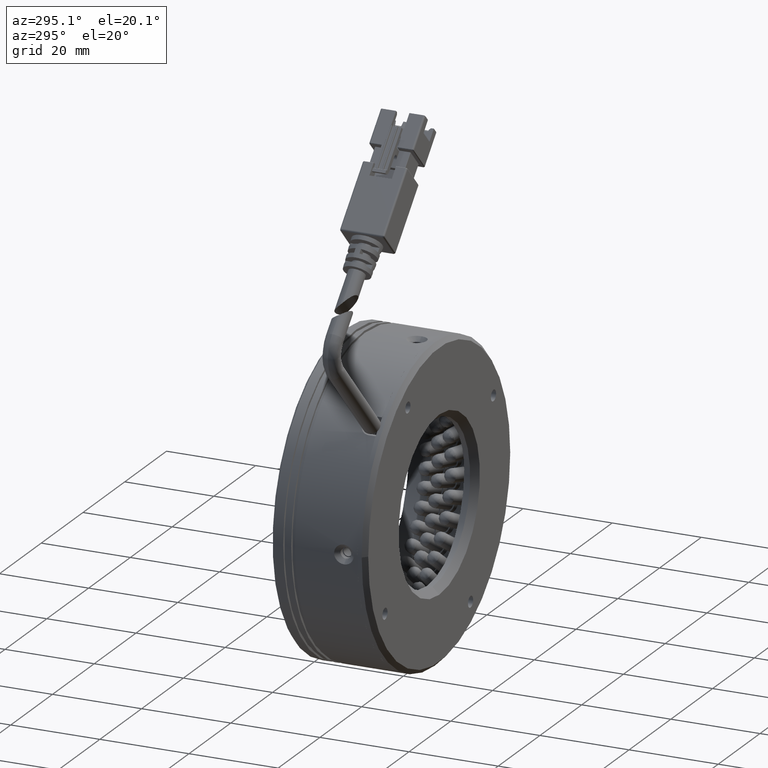
[diagram: clean part render]
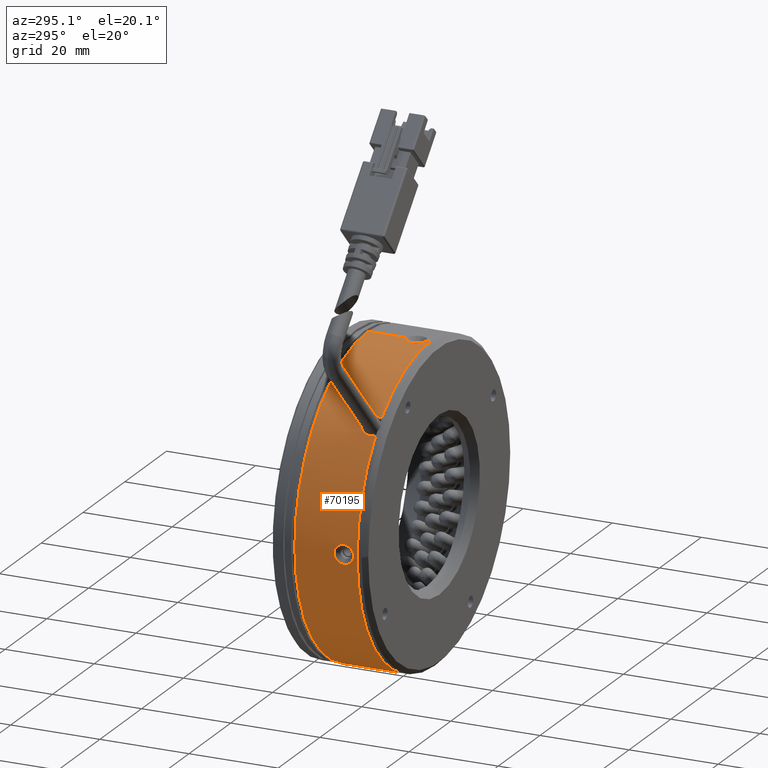
[diagram: same view with one face highlighted and labeled with its STEP entity id]
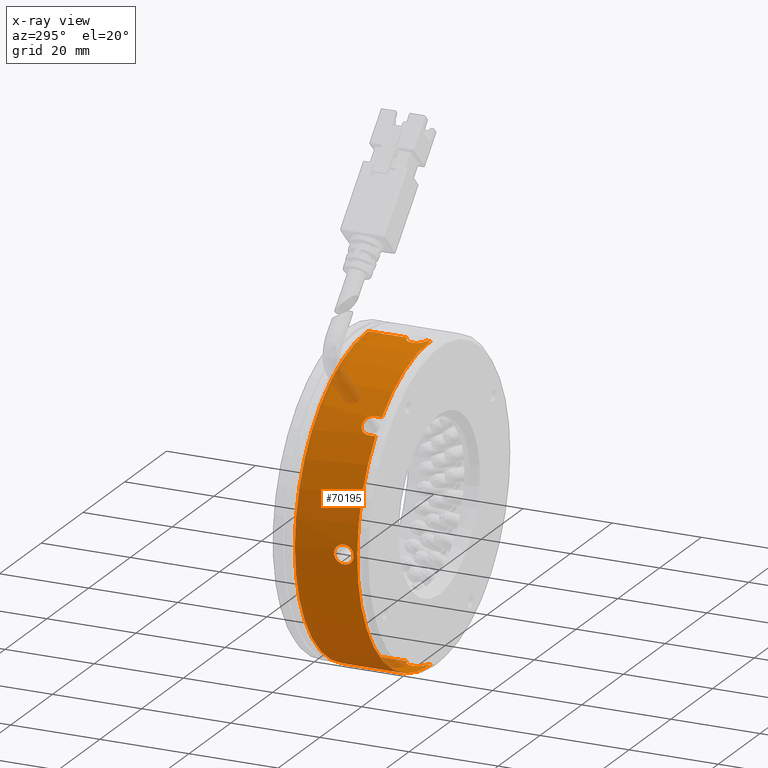
[diagram: x-ray of the same camera — body ghosted, the highlighted face saturated]
A machine part, auxiliary view. The second image highlights one B-rep face of the part: STEP entity #70195.
The next image is the same camera in x-ray: the body ghosted, the highlighted face saturated — about 4% of this face is hidden behind the body in this view.
In plain terms, the highlighted cylindrical surface (partial cylindrical patch) has radius 35 mm, axis along (-0, -1, -0).
Its self-contained STEP definition (entity closure, byte-faithful):
#85 = CARTESIAN_POINT ( 'NONE',  ( -72.19919487424323300, -23.48470876480094900, -11.77680698778632400 ) ) ;
#99 = DIRECTION ( 'NONE',  ( 0.0000000000000000000, 0.0000000000000000000, -1.000000000000000000 ) ) ;
#207 = CARTESIAN_POINT ( 'NONE',  ( -72.18648179265486000, -23.17893845901557300, -11.48444872106112900 ) ) ;
#299 = CARTESIAN_POINT ( 'NONE',  ( -72.18221120800826900, -23.06593643704891200, -11.39573436642867700 ) ) ;
#413 = CARTESIAN_POINT ( 'NONE',  ( -72.17441359463734300, -22.82666853178469800, -11.24287750523224400 ) ) ;
#546 = CARTESIAN_POINT ( 'NONE',  ( -72.17089713113424000, -22.70108090721028700, -11.17873472184791200 ) ) ;
#642 = CARTESIAN_POINT ( 'NONE',  ( -72.16499678584074200, -22.43829656751779600, -11.07438415200388200 ) ) ;
#1005 = CARTESIAN_POINT ( 'NONE',  ( -72.16260842407425000, -22.29991913465412900, -11.03413457653737800 ) ) ;
#1118 = CARTESIAN_POINT ( 'NONE',  ( -72.15942396432168900, -22.02123343144859300, -10.98102504383183500 ) ) ;
#1556 = DIRECTION ( 'NONE',  ( -0.0000000000000000000, -1.000000000000000000, -0.0000000000000000000 ) ) ;
#1854 = CARTESIAN_POINT ( 'NONE',  ( -39.35859563401581300, -21.73693679055961100, 21.83240658874149900 ) ) ;
#1864 = VERTEX_POINT ( 'NONE', #54137 ) ;
#2040 = CARTESIAN_POINT ( 'NONE',  ( -72.15859563407821000, -21.88003493872553000, -10.96759341127066500 ) ) ;
#2211 = CARTESIAN_POINT ( 'NONE',  ( -39.35859563401583500, -21.87997071529385100, 21.83240658874150200 ) ) ;
#2402 = DIRECTION ( 'NONE',  ( -0.0000000000000000000, -1.000000000000000000, -0.0000000000000000000 ) ) ;
#2553 = CARTESIAN_POINT ( 'NONE',  ( -39.34517581350775800, -22.02118854001020100, 21.83323421800685100 ) ) ;
#2865 = CARTESIAN_POINT ( 'NONE',  ( -72.21701431307143100, -19.65340967446399400, -13.80181309716154400 ) ) ;
#2888 = CARTESIAN_POINT ( 'NONE',  ( -39.29202359342004100, -22.30006405213177700, 21.83642122275134100 ) ) ;
#3127 = CARTESIAN_POINT ( 'NONE',  ( -63.46670918281706300, -10.10550973775694800, 10.05589494330666500 ) ) ;
#3241 = CARTESIAN_POINT ( 'NONE',  ( -39.25181313723115300, -22.43825653596173800, 21.83880721211647800 ) ) ;
#3324 = CARTESIAN_POINT ( 'NONE',  ( -72.15859563407819600, -21.73693679055961100, -10.96759341127059500 ) ) ;
#3528 = CARTESIAN_POINT ( 'NONE',  ( -38.54970370794844600, -19.98943390663248800, 21.87299322417172600 ) ) ;
#3580 = CARTESIAN_POINT ( 'NONE',  ( -39.09538724856667400, -22.83223909229244700, 21.84765226428723800 ) ) ;
#3696 = ORIENTED_EDGE ( 'NONE', *, *, #18945, .T. ) ;
#3931 = CARTESIAN_POINT ( 'NONE',  ( -38.93929322558239600, -23.07691833832288700, 21.85605086407608500 ) ) ;
#4265 = CARTESIAN_POINT ( 'NONE',  ( -38.64674033459720400, -23.38288011401085200, 21.86877216067218300 ) ) ;
#4278 = VERTEX_POINT ( 'NONE', #79405 ) ;
#4327 = CARTESIAN_POINT ( 'NONE',  ( -39.29208258320427700, -22.29980184118386800, -48.04126867576255900 ) ) ;
#4332 = CARTESIAN_POINT ( 'NONE',  ( -63.45719955681787600, -22.90314248807499800, 10.06668387137813000 ) ) ;
#4633 = CARTESIAN_POINT ( 'NONE',  ( -38.53830400992985300, -23.47619273373700100, 21.87307450420270200 ) ) ;
#4651 = CARTESIAN_POINT ( 'NONE',  ( -72.18228372277616200, -20.40594409998430000, -11.39722068191005100 ) ) ;
#4696 = CARTESIAN_POINT ( 'NONE',  ( -62.36686726495298700, -21.10478920740880300, 11.24595865287460100 ) ) ;
#4966 = CARTESIAN_POINT ( 'NONE',  ( -38.30506477950060400, -23.63920736627007500, 21.88106210217100800 ) ) ;
#5035 = CARTESIAN_POINT ( 'NONE',  ( -60.60145859948127600, -22.10135303487812700, 12.94540987546400500 ) ) ;
#5297 = CARTESIAN_POINT ( 'NONE',  ( -38.18185526177880000, -23.70812651774490500, 21.88469953635841100 ) ) ;
#5636 = CARTESIAN_POINT ( 'NONE',  ( -37.92225923372046700, -23.82081558900806300, 21.89084473604073000 ) ) ;
#5974 = CARTESIAN_POINT ( 'NONE',  ( -37.78478417546926200, -23.86454505281397300, 21.89335213302042900 ) ) ;
#6335 = CARTESIAN_POINT ( 'NONE',  ( -37.50771075228000500, -23.92223655273517100, 21.89669692132190800 ) ) ;
#7039 = VERTEX_POINT ( 'NONE', #93261 ) ;
#7065 = CARTESIAN_POINT ( 'NONE',  ( -39.34517581350775100, -21.45268504110900300, -48.03808518791749500 ) ) ;
#7403 = CARTESIAN_POINT ( 'NONE',  ( -37.22376356038465400, -23.93693679049394900, 21.89757451504468500 ) ) ;
#7529 = CARTESIAN_POINT ( 'NONE',  ( -37.36691250539988800, -23.93693679049393100, 21.89757451504468100 ) ) ;
#8585 = DIRECTION ( 'NONE',  ( 0.0000000000000000000, 1.000000000000000000, 0.0000000000000000000 ) ) ;
#8640 = CIRCLE ( 'NONE', #79074, 35.00000000000000000 ) ;
#9134 = CARTESIAN_POINT ( 'NONE',  ( -37.22376356038466100, -24.73693679055960400, -13.10242548495532100 ) ) ;
#10804 = B_SPLINE_CURVE_WITH_KNOTS ( 'NONE', 3,
 ( #54919, #103054, #14809, #71024, #22934, #79152, #31025, #87253, #39112, #95316, #47165, #103405, #55260, #7065, #63299, #15161 ),
 .UNSPECIFIED., .F., .F.,
 ( 4, 2, 2, 2, 2, 2, 2, 4 ),
 ( 0.006786052840743859800, 0.007210104708582166200, 0.007634156576420471700, 0.008058208444258778100, 0.008482260312097084400, 0.009330364047773681600, 0.009754415915611981000, 0.01017846778345028000 ),
 .UNSPECIFIED. ) ;
#10957 = CARTESIAN_POINT ( 'NONE',  ( -72.22288607844613800, -19.55163243285318600, -13.38667850832691600 ) ) ;
#11623 = CARTESIAN_POINT ( 'NONE',  ( -37.92368686113864100, -19.65360307949746500, 21.89081440042952000 ) ) ;
#11837 = ORIENTED_EDGE ( 'NONE', *, *, #20697, .T. ) ;
#12076 = FACE_OUTER_BOUND ( 'NONE', #20494, .T. ) ;
#12369 = LINE ( 'NONE', #22091, #26196 ) ;
#12463 = CARTESIAN_POINT ( 'NONE',  ( -39.14754193227398100, -22.70089100849475400, -48.04955420123086200 ) ) ;
#12465 = CARTESIAN_POINT ( 'NONE',  ( -63.46670918281704800, -23.18693679055961000, 10.05589494330667200 ) ) ;
#12739 = CARTESIAN_POINT ( 'NONE',  ( -72.17089672165334900, -20.77281160615650500, -11.17872752636620800 ) ) ;
#12788 = CARTESIAN_POINT ( 'NONE',  ( -62.07319593178989700, -21.03700290820240700, 11.54561089932319900 ) ) ;
#13113 = CARTESIAN_POINT ( 'NONE',  ( -60.46704248962336000, -22.48873220437680900, 13.06536134960385800 ) ) ;
#14499 = ORIENTED_EDGE ( 'NONE', *, *, #48249, .F. ) ;
#14597 = EDGE_CURVE ( 'NONE', #7039, #51332, #86611, .T. ) ;
#14809 = CARTESIAN_POINT ( 'NONE',  ( -37.50771075228001200, -19.55163702838384100, -48.10154789123254900 ) ) ;
#15161 = CARTESIAN_POINT ( 'NONE',  ( -39.35859563401581300, -21.73693679055961100, -48.03725755865213600 ) ) ;
#16408 = B_SPLINE_CURVE_WITH_KNOTS ( 'NONE', 3,
 ( #98921, #50704, #18756, #74934, #26803, #83060, #34907, #91167, #42980, #99264, #51061, #2865, #59161, #10957, #67183, #20546, #76725, #28621, #84844, #36709, #92947, #44758, #101040, #52822, #4651, #60927, #12739, #68973, #20897, #77068 ),
 .UNSPECIFIED., .F., .F.,
 ( 4, 2, 2, 2, 2, 2, 2, 2, 2, 2, 2, 2, 2, 2, 4 ),
 ( 0.0000000000000000000, 0.0004250800221460684400, 0.0008501600442921368900, 0.001275240066438205400, 0.001700320088584273800, 0.002550480132876414200, 0.002975560155022483100, 0.003400640177168551000, 0.003825720199314619800, 0.004250800221460688200, 0.004675880243606756600, 0.005100960265752824100, 0.005526040287898893400, 0.005951120310044961800, 0.006801280354337099400 ),
 .UNSPECIFIED. ) ;
#17216 = VECTOR ( 'NONE', #70319, 1000.000000000000000 ) ;
#17277 = DIRECTION ( 'NONE',  ( 0.0000000000000000000, 0.0000000000000000000, -1.000000000000000000 ) ) ;
#18012 = ORIENTED_EDGE ( 'NONE', *, *, #77751, .T. ) ;
#18544 = CIRCLE ( 'NONE', #68099, 35.00000000000000000 ) ;
#18629 = CARTESIAN_POINT ( 'NONE',  ( -37.22376356038465400, -10.10550973775694800, 21.89757451504468500 ) ) ;
#18756 = CARTESIAN_POINT ( 'NONE',  ( -72.15942396432167500, -21.45264014967063200, -15.22382592607904600 ) ) ;
#18945 = EDGE_CURVE ( 'NONE', #1864, #50734, #68074, .T. ) ;
#19789 = CARTESIAN_POINT ( 'NONE',  ( -37.50826264832228700, -19.55164704036117100, 21.89669610280887100 ) ) ;
#19850 = VERTEX_POINT ( 'NONE', #35397 ) ;
#20494 = EDGE_LOOP ( 'NONE', ( #14499, #57828, #98609, #44428, #38941, #37117, #76059, #66356, #85349, #50011, #11837, #61731, #3696, #40907 ) ) ;
#20546 = CARTESIAN_POINT ( 'NONE',  ( -72.22377267242411800, -19.53678271417762600, -12.96310817783427000 ) ) ;
#20581 = CARTESIAN_POINT ( 'NONE',  ( -38.93063235117442400, -23.06569060759352400, -48.06086438807119500 ) ) ;
#20584 = CARTESIAN_POINT ( 'NONE',  ( -63.41989359537929300, -22.62648436212026200, 10.10885547354302400 ) ) ;
#20697 = EDGE_CURVE ( 'NONE', #73414, #19850, #48975, .T. ) ;
#20897 = CARTESIAN_POINT ( 'NONE',  ( -72.15859563407819600, -21.45071874979721100, -10.96759341127045700 ) ) ;
#20949 = CARTESIAN_POINT ( 'NONE',  ( -61.77115033680624400, -21.05066216474871500, 11.84642374056994600 ) ) ;
#21294 = CARTESIAN_POINT ( 'NONE',  ( -60.39311792706755000, -22.90058625625215100, 13.13079438471443400 ) ) ;
#22091 = CARTESIAN_POINT ( 'NONE',  ( -37.22376356038465400, -10.10550973775694800, 21.89757451504468500 ) ) ;
#22511 = CARTESIAN_POINT ( 'NONE',  ( -39.35859563401581300, -21.73693679055961100, -48.03725755865213600 ) ) ;
#22617 = VERTEX_POINT ( 'NONE', #73537 ) ;
#22934 = CARTESIAN_POINT ( 'NONE',  ( -37.92225923372048200, -19.65305799211099100, -48.09569570595137800 ) ) ;
#24600 = EDGE_LOOP ( 'NONE', ( #60248, #18012 ) ) ;
#26196 = VECTOR ( 'NONE', #45937, 1000.000000000000000 ) ;
#26803 = CARTESIAN_POINT ( 'NONE',  ( -72.16499678584072800, -21.03557701360143600, -15.13046681790700600 ) ) ;
#27140 = CARTESIAN_POINT ( 'NONE',  ( -39.35859563401579900, -21.59386895970070000, 21.83240658874150600 ) ) ;
#27468 = CARTESIAN_POINT ( 'NONE',  ( -39.34516963937911500, -21.45269998687595200, 21.83323456806186500 ) ) ;
#27823 = CARTESIAN_POINT ( 'NONE',  ( -37.22376356038465400, -19.53693679062221700, 21.89757451503732000 ) ) ;
#27947 = CARTESIAN_POINT ( 'NONE',  ( -39.35859563401581300, -21.73693679055961100, -48.03725755865213600 ) ) ;
#28128 = DIRECTION ( 'NONE',  ( 0.0000000000000000000, 1.000000000000000000, 0.0000000000000000000 ) ) ;
#28621 = CARTESIAN_POINT ( 'NONE',  ( -72.21955972410485500, -19.60900568356251800, -12.54258832069828800 ) ) ;
#28664 = CARTESIAN_POINT ( 'NONE',  ( -38.54970370794845300, -23.48443967448682600, -48.07784419408235300 ) ) ;
#28667 = CARTESIAN_POINT ( 'NONE',  ( -63.31787781798403400, -22.22783951909080700, 10.22353156421552400 ) ) ;
#29006 = CARTESIAN_POINT ( 'NONE',  ( -61.47508772277452500, -21.14476724911269300, 12.13426606671402100 ) ) ;
#29340 = CARTESIAN_POINT ( 'NONE',  ( -60.38208398864672700, -23.18693679055961000, 13.14052013747701200 ) ) ;
#29453 = EDGE_CURVE ( 'NONE', #48803, #34932, #38594, .T. ) ;
#31025 = CARTESIAN_POINT ( 'NONE',  ( -38.30506477950064000, -19.83466621484901200, -48.08591307208164500 ) ) ;
#34450 = AXIS2_PLACEMENT_3D ( 'NONE', #9134, #65336, #17277 ) ;
#34907 = CARTESIAN_POINT ( 'NONE',  ( -72.17441359463730100, -20.64720504933453800, -14.96197346467865000 ) ) ;
#34932 = VERTEX_POINT ( 'NONE', #35124 ) ;
#35124 = CARTESIAN_POINT ( 'NONE',  ( -37.22376356038466100, -24.73693679055960400, -48.10242548495532600 ) ) ;
#35223 = CARTESIAN_POINT ( 'NONE',  ( -39.35859563401581300, -21.73693679055961100, 21.83240658874149900 ) ) ;
#35397 = CARTESIAN_POINT ( 'NONE',  ( -37.22376356038465400, -24.73693679055960400, 21.89757451504468500 ) ) ;
#35578 = CARTESIAN_POINT ( 'NONE',  ( -39.25184992002358800, -21.03572116801038000, 21.83880509517631900 ) ) ;
#36709 = CARTESIAN_POINT ( 'NONE',  ( -72.21092947146236400, -19.76496629095659700, -12.14565423040928100 ) ) ;
#36752 = CARTESIAN_POINT ( 'NONE',  ( -37.92368686113866300, -23.82027050162193000, -48.09566537034015700 ) ) ;
#36756 = CARTESIAN_POINT ( 'NONE',  ( -63.16560618559595500, -21.86996423252865500, 10.39283354219874600 ) ) ;
#36940 = DIRECTION ( 'NONE',  ( -0.0000000000000000000, -1.000000000000000000, -0.0000000000000000000 ) ) ;
#37117 = ORIENTED_EDGE ( 'NONE', *, *, #29453, .T. ) ;
#37124 = CARTESIAN_POINT ( 'NONE',  ( -61.19195739857615700, -21.31782239801181700, 12.40325299526902800 ) ) ;
#37904 = EDGE_CURVE ( 'NONE', #98734, #102401, #49185, .T. ) ;
#38594 = LINE ( 'NONE', #46091, #17216 ) ;
#38941 = ORIENTED_EDGE ( 'NONE', *, *, #51509, .T. ) ;
#39112 = CARTESIAN_POINT ( 'NONE',  ( -38.64674033459721900, -20.09099346710828000, -48.07362313058281700 ) ) ;
#39307 = CARTESIAN_POINT ( 'NONE',  ( -37.22376356038465400, -19.53693679062221700, 21.89757451503732000 ) ) ;
#39911 = CARTESIAN_POINT ( 'NONE',  ( -37.22376356038466100, -10.10550973775694800, -13.10242548495532100 ) ) ;
#40450 = B_SPLINE_CURVE_WITH_KNOTS ( 'NONE', 3,
 ( #35223, #27140, #27468, #83742, #35578, #91818, #43612, #99914, #51701, #3528, #59821, #11623, #67844, #19789, #75947, #27823 ),
 .UNSPECIFIED., .F., .F.,
 ( 4, 2, 2, 2, 2, 2, 2, 4 ),
 ( 0.01017846778344897400, 0.01060262017258143200, 0.01102677256171389000, 0.01145092495084634700, 0.01187507733997880500, 0.01272338211824372900, 0.01314753450737617800, 0.01357168689650862900 ),
 .UNSPECIFIED. ) ;
#40907 = ORIENTED_EDGE ( 'NONE', *, *, #51880, .T. ) ;
#41821 = B_SPLINE_CURVE_WITH_KNOTS ( 'NONE', 3,
 ( #27947, #92635, #52523, #4327, #60625, #12463, #68653, #20581, #76774, #28664, #84887, #36752, #92994, #44801, #101072, #52871 ),
 .UNSPECIFIED., .F., .F.,
 ( 4, 2, 2, 2, 2, 2, 2, 4 ),
 ( 0.01017846778345028000, 0.01060262017258274900, 0.01102677256171521800, 0.01145092495084768700, 0.01187507733998015600, 0.01272338211824509300, 0.01314753450737757500, 0.01357168689651005500 ),
 .UNSPECIFIED. ) ;
#42541 = VERTEX_POINT ( 'NONE', #22511 ) ;
#42980 = CARTESIAN_POINT ( 'NONE',  ( -72.18648179265486000, -20.29493512210366600, -14.72040224884976200 ) ) ;
#43612 = CARTESIAN_POINT ( 'NONE',  ( -39.08342530106762800, -20.64741546415481100, 21.84821842645350300 ) ) ;
#44428 = ORIENTED_EDGE ( 'NONE', *, *, #90952, .T. ) ;
#44758 = CARTESIAN_POINT ( 'NONE',  ( -72.19933629333510800, -19.99615954029330600, -11.78989398007965800 ) ) ;
#44777 = CYLINDRICAL_SURFACE ( 'NONE', #83864, 35.00000000000000000 ) ;
#44801 = CARTESIAN_POINT ( 'NONE',  ( -37.50826264832232900, -23.92222654075826000, -48.10154707271952600 ) ) ;
#44805 = CARTESIAN_POINT ( 'NONE',  ( -62.89871526194900000, -21.46354957633663900, 10.68491687128340800 ) ) ;
#45136 = CARTESIAN_POINT ( 'NONE',  ( -60.93815582973164200, -21.56033681113305900, 12.63933173385570400 ) ) ;
#45922 = LINE ( 'NONE', #3127, #86187 ) ;
#45937 = DIRECTION ( 'NONE',  ( -0.0000000000000000000, -1.000000000000000000, -0.0000000000000000000 ) ) ;
#45986 = CARTESIAN_POINT ( 'NONE',  ( -37.22376356038466100, -10.10550973775694800, -48.10242548495532600 ) ) ;
#46091 = CARTESIAN_POINT ( 'NONE',  ( -37.22376356038466100, -10.10550973775694800, -48.10242548495532600 ) ) ;
#47165 = CARTESIAN_POINT ( 'NONE',  ( -39.09538724856667400, -20.64163448882672100, -48.05250323419785700 ) ) ;
#48249 = EDGE_CURVE ( 'NONE', #77940, #73714, #63407, .T. ) ;
#48482 = CARTESIAN_POINT ( 'NONE',  ( -63.46670918281706300, -24.73693679055960400, 10.05589494330665800 ) ) ;
#48803 = VERTEX_POINT ( 'NONE', #49087 ) ;
#48975 = CIRCLE ( 'NONE', #34450, 35.00000000000000000 ) ;
#49087 = CARTESIAN_POINT ( 'NONE',  ( -37.22376356038466100, -23.93693679049722800, -48.10242548494798600 ) ) ;
#49185 = B_SPLINE_CURVE_WITH_KNOTS ( 'NONE', 3,
 ( #12465, #60628, #4332, #20584, #76781, #28667, #84890, #36756, #92998, #44805, #101075, #52875, #4696, #60970, #12788, #69012, #20949, #77112, #29006, #85243, #37124, #93322, #45136, #101426, #53223, #5035, #61308, #13113, #69360, #21294, #77459, #29340 ),
 .UNSPECIFIED., .F., .F.,
 ( 4, 2, 2, 2, 2, 2, 2, 2, 2, 2, 2, 2, 2, 2, 2, 4 ),
 ( 3.469446951953614200E-018, 0.0004232750302415223700, 0.0008465500604830412700, 0.001269825090724560100, 0.001693100120966079100, 0.002539650181449116600, 0.002962925211690648900, 0.003386200241932181600, 0.003809475272173714200, 0.004232750302415246000, 0.004656025332656779100, 0.005079300362898311400, 0.005502575393139844500, 0.005925850423381375800, 0.006349125453622908900, 0.006772400483864441200 ),
 .UNSPECIFIED. ) ;
#49776 = CARTESIAN_POINT ( 'NONE',  ( -37.22376356038466100, -10.73693679055960500, -13.10242548495532100 ) ) ;
#49863 = LINE ( 'NONE', #93169, #71202 ) ;
#50011 = ORIENTED_EDGE ( 'NONE', *, *, #69065, .T. ) ;
#50476 = CARTESIAN_POINT ( 'NONE',  ( -72.15859563407818200, -21.73693679055961100, -15.23725755864029100 ) ) ;
#50704 = CARTESIAN_POINT ( 'NONE',  ( -72.15859563407821000, -21.59383864239477500, -15.23725755864028200 ) ) ;
#50734 = VERTEX_POINT ( 'NONE', #69131 ) ;
#51061 = CARTESIAN_POINT ( 'NONE',  ( -72.20782325663830600, -19.82196886819406200, -14.18986847612012000 ) ) ;
#51332 = VERTEX_POINT ( 'NONE', #50476 ) ;
#51509 = EDGE_CURVE ( 'NONE', #42541, #48803, #41821, .T. ) ;
#51701 = CARTESIAN_POINT ( 'NONE',  ( -38.84195110853834600, -20.29518929847126400, 21.86028288907399600 ) ) ;
#51880 = EDGE_CURVE ( 'NONE', #50734, #73714, #40450, .T. ) ;
#52523 = CARTESIAN_POINT ( 'NONE',  ( -39.34516963937911500, -22.02117359424328000, -48.03808553797249200 ) ) ;
#52822 = CARTESIAN_POINT ( 'NONE',  ( -72.18648156479511600, -20.29489224811288400, -11.48439829090766500 ) ) ;
#52871 = CARTESIAN_POINT ( 'NONE',  ( -37.22376356038466100, -23.93693679049722800, -48.10242548494798600 ) ) ;
#52875 = CARTESIAN_POINT ( 'NONE',  ( -62.46222385914966000, -21.14567528577140400, 11.14705329127196600 ) ) ;
#53223 = CARTESIAN_POINT ( 'NONE',  ( -60.71984682048545100, -21.86862348772203600, 12.83866978372840800 ) ) ;
#54067 = DIRECTION ( 'NONE',  ( -0.0000000000000000000, -1.000000000000000000, -0.0000000000000000000 ) ) ;
#54137 = CARTESIAN_POINT ( 'NONE',  ( -37.22376356038465400, -23.93693679049394900, 21.89757451504468500 ) ) ;
#54868 = FACE_BOUND ( 'NONE', #24600, .T. ) ;
#54919 = CARTESIAN_POINT ( 'NONE',  ( -37.22376356038466100, -19.53693679062502800, -48.10242548495532600 ) ) ;
#55260 = CARTESIAN_POINT ( 'NONE',  ( -39.29202359342004100, -21.17380952898742300, -48.04127219266198500 ) ) ;
#56179 = LINE ( 'NONE', #45986, #98974 ) ;
#56760 = CARTESIAN_POINT ( 'NONE',  ( -37.22376356038466100, -24.73693679055960400, -13.10242548495532100 ) ) ;
#57828 = ORIENTED_EDGE ( 'NONE', *, *, #59704, .T. ) ;
#57875 = DIRECTION ( 'NONE',  ( 0.0000000000000000000, 0.0000000000000000000, -1.000000000000000000 ) ) ;
#59161 = CARTESIAN_POINT ( 'NONE',  ( -72.21951787287260100, -19.60973319124941800, -13.66505939395210800 ) ) ;
#59508 = EDGE_CURVE ( 'NONE', #1864, #19850, #12369, .T. ) ;
#59704 = EDGE_CURVE ( 'NONE', #77940, #22617, #18544, .T. ) ;
#59821 = CARTESIAN_POINT ( 'NONE',  ( -38.31161495567853600, -19.82222505445712100, 21.88162088698194900 ) ) ;
#60248 = ORIENTED_EDGE ( 'NONE', *, *, #14597, .T. ) ;
#60625 = CARTESIAN_POINT ( 'NONE',  ( -39.25184992002360200, -22.43815241310885600, -48.04365606508695000 ) ) ;
#60628 = CARTESIAN_POINT ( 'NONE',  ( -63.46670668935083600, -23.04381623783286800, 10.05589776889578800 ) ) ;
#60927 = CARTESIAN_POINT ( 'NONE',  ( -72.17449339993611100, -20.64452868612601900, -11.24437837916172900 ) ) ;
#60970 = CARTESIAN_POINT ( 'NONE',  ( -62.17191088425483500, -21.05049272272526700, 11.44567870108063400 ) ) ;
#61308 = CARTESIAN_POINT ( 'NONE',  ( -60.54995429406810800, -22.22716761358990200, 12.99148010729247100 ) ) ;
#61731 = ORIENTED_EDGE ( 'NONE', *, *, #59508, .F. ) ;
#63299 = CARTESIAN_POINT ( 'NONE',  ( -39.35859563401586300, -21.59390286582536000, -48.03725755865214400 ) ) ;
#63407 = LINE ( 'NONE', #18629, #103676 ) ;
#64777 = DIRECTION ( 'NONE',  ( 0.0000000000000000000, 0.0000000000000000000, -1.000000000000000000 ) ) ;
#65336 = DIRECTION ( 'NONE',  ( 0.0000000000000000000, 1.000000000000000000, 0.0000000000000000000 ) ) ;
#65839 = EDGE_CURVE ( 'NONE', #82865, #98734, #45922, .T. ) ;
#66356 = ORIENTED_EDGE ( 'NONE', *, *, #65839, .T. ) ;
#67183 = CARTESIAN_POINT ( 'NONE',  ( -72.22375430103278400, -19.53709335787899800, -13.24628412896535000 ) ) ;
#67844 = CARTESIAN_POINT ( 'NONE',  ( -37.78718050045569800, -19.60993350181382800, 21.89331729895741700 ) ) ;
#68074 = B_SPLINE_CURVE_WITH_KNOTS ( 'NONE', 3,
 ( #7403, #7529, #6335, #5974, #5636, #5297, #4966, #4633, #4265, #3931, #3580, #3241, #2888, #2553, #2211, #1854 ),
 .UNSPECIFIED., .F., .F.,
 ( 4, 2, 2, 2, 2, 2, 2, 4 ),
 ( 0.006786052840742668900, 0.007210104708580961400, 0.007634156576419253900, 0.008058208444257546400, 0.008482260312095838900, 0.009330364047772411700, 0.009754415915610692100, 0.01017846778344897400 ),
 .UNSPECIFIED. ) ;
#68099 = AXIS2_PLACEMENT_3D ( 'NONE', #49776, #1556, #57875 ) ;
#68653 = CARTESIAN_POINT ( 'NONE',  ( -39.08342530106762100, -22.82645811696445300, -48.05306939636411600 ) ) ;
#68881 = CARTESIAN_POINT ( 'NONE',  ( -60.38208398864672700, -23.18693679055961000, 13.14052013747701200 ) ) ;
#68973 = CARTESIAN_POINT ( 'NONE',  ( -72.16204772927714800, -21.16691808605916200, -11.02222851278849600 ) ) ;
#69012 = CARTESIAN_POINT ( 'NONE',  ( -61.87326793978870400, -21.03687121118271700, 11.74555070288544700 ) ) ;
#69065 = EDGE_CURVE ( 'NONE', #102401, #73414, #49863, .T. ) ;
#69131 = CARTESIAN_POINT ( 'NONE',  ( -39.35859563401581300, -21.73693679055961100, 21.83240658874149900 ) ) ;
#69360 = CARTESIAN_POINT ( 'NONE',  ( -60.43565855911648300, -22.62342447067121800, 13.09316072851225100 ) ) ;
#70195 = ADVANCED_FACE ( 'NONE', ( #12076, #54868 ), #44777, .T. ) ;
#70319 = DIRECTION ( 'NONE',  ( -0.0000000000000000000, -1.000000000000000000, -0.0000000000000000000 ) ) ;
#71024 = CARTESIAN_POINT ( 'NONE',  ( -37.78478417546927700, -19.60932852830506700, -48.09820310293105200 ) ) ;
#71202 = VECTOR ( 'NONE', #36940, 1000.000000000000000 ) ;
#72137 = DIRECTION ( 'NONE',  ( -0.0000000000000000000, -1.000000000000000000, -0.0000000000000000000 ) ) ;
#73414 = VERTEX_POINT ( 'NONE', #81421 ) ;
#73537 = CARTESIAN_POINT ( 'NONE',  ( -37.22376356038466100, -10.73693679055960500, -48.10242548495532600 ) ) ;
#73714 = VERTEX_POINT ( 'NONE', #39307 ) ;
#74934 = CARTESIAN_POINT ( 'NONE',  ( -72.16260842407423600, -21.17395444646508600, -15.17071639337350500 ) ) ;
#75472 = CARTESIAN_POINT ( 'NONE',  ( -72.17449339993608200, -22.82934489499319500, -14.96047259074914700 ) ) ;
#75947 = CARTESIAN_POINT ( 'NONE',  ( -37.36693760260140400, -19.53693679062221700, 21.89757451503732400 ) ) ;
#76059 = ORIENTED_EDGE ( 'NONE', *, *, #90555, .T. ) ;
#76404 = CARTESIAN_POINT ( 'NONE',  ( -72.15859563407818200, -21.73693679055961100, -15.23725755864029100 ) ) ;
#76725 = CARTESIAN_POINT ( 'NONE',  ( -72.22289348338740900, -19.55151036618909200, -12.81945655395746400 ) ) ;
#76774 = CARTESIAN_POINT ( 'NONE',  ( -38.84195110853836800, -23.17868428264803200, -48.06513385898462300 ) ) ;
#76781 = CARTESIAN_POINT ( 'NONE',  ( -63.39161402612113200, -22.48902644992799100, 10.14078154745030800 ) ) ;
#76915 = EDGE_CURVE ( 'NONE', #22617, #4278, #56179, .T. ) ;
#77068 = CARTESIAN_POINT ( 'NONE',  ( -72.15859563407819600, -21.73693679055961100, -10.96759341127059500 ) ) ;
#77112 = CARTESIAN_POINT ( 'NONE',  ( -61.57245067993877500, -21.10473217463752200, 12.04038085768050700 ) ) ;
#77459 = CARTESIAN_POINT ( 'NONE',  ( -60.38208664764511000, -23.04381150168661200, 13.14051779102027100 ) ) ;
#77751 = EDGE_CURVE ( 'NONE', #51332, #7039, #16408, .T. ) ;
#77940 = VERTEX_POINT ( 'NONE', #96016 ) ;
#79074 = AXIS2_PLACEMENT_3D ( 'NONE', #56760, #8585, #64777 ) ;
#79152 = CARTESIAN_POINT ( 'NONE',  ( -38.18185526177882100, -19.76574706337418200, -48.08955050626905600 ) ) ;
#79405 = CARTESIAN_POINT ( 'NONE',  ( -37.22376356038466100, -19.53693679062502800, -48.10242548495532600 ) ) ;
#81336 = CARTESIAN_POINT ( 'NONE',  ( -72.15859563407822500, -22.02311134410741300, -15.23725755864028700 ) ) ;
#81421 = CARTESIAN_POINT ( 'NONE',  ( -60.38208398864672700, -24.73693679055960400, 13.14052013747700400 ) ) ;
#82578 = CARTESIAN_POINT ( 'NONE',  ( -72.17089672165334900, -22.70106197496271600, -15.02612344354467800 ) ) ;
#82698 = CARTESIAN_POINT ( 'NONE',  ( -72.18228372277613400, -23.06792948113492200, -14.80763028800083500 ) ) ;
#82865 = VERTEX_POINT ( 'NONE', #48482 ) ;
#83060 = CARTESIAN_POINT ( 'NONE',  ( -72.17089713113418300, -20.77279267390894900, -15.02611624806297600 ) ) ;
#83115 = CARTESIAN_POINT ( 'NONE',  ( -72.18648156479508800, -23.17898133300633700, -14.72045267900322300 ) ) ;
#83464 = CARTESIAN_POINT ( 'NONE',  ( -72.19501834864802000, -23.38420782504768900, -14.52404455874787800 ) ) ;
#83619 = CARTESIAN_POINT ( 'NONE',  ( -72.16204772927716200, -22.30695549506004800, -15.18262245712239400 ) ) ;
#83742 = CARTESIAN_POINT ( 'NONE',  ( -39.29208258320425500, -21.17407173993537500, 21.83641770585191800 ) ) ;
#83751 = CARTESIAN_POINT ( 'NONE',  ( -72.19933629333510800, -23.47771404082590500, -14.41495698983122500 ) ) ;
#83864 = AXIS2_PLACEMENT_3D ( 'NONE', #39911, #72137, #99 ) ;
#84844 = CARTESIAN_POINT ( 'NONE',  ( -72.21711558241889900, -19.65158951252261900, -12.40780041717043300 ) ) ;
#84887 = CARTESIAN_POINT ( 'NONE',  ( -38.31161495567856400, -23.65164852666222100, -48.08647185689260100 ) ) ;
#84890 = CARTESIAN_POINT ( 'NONE',  ( -63.27270425272988100, -22.10405653799697800, 10.27403884032229100 ) ) ;
#85243 = CARTESIAN_POINT ( 'NONE',  ( -61.28459419532737200, -21.25126257938271500, 12.31594883875027500 ) ) ;
#85349 = ORIENTED_EDGE ( 'NONE', *, *, #37904, .T. ) ;
#86187 = VECTOR ( 'NONE', #28128, 1000.000000000000000 ) ;
#86611 = B_SPLINE_CURVE_WITH_KNOTS ( 'NONE', 3,
 ( #3324, #2040, #1118, #1005, #642, #546, #413, #299, #207, #85, #103825, #101048, #103131, #101385, #103469, #101304, #97459, #96071, #92055, #91699, #89034, #83751, #83464, #83115, #82698, #75472, #82578, #83619, #81336, #76404 ),
 .UNSPECIFIED., .F., .F.,
 ( 4, 2, 2, 2, 2, 2, 2, 2, 2, 2, 2, 2, 2, 2, 4 ),
 ( 0.006801280354337099400, 0.007226328082486637900, 0.007651375810636176400, 0.008076423538785714900, 0.008501471266935253400, 0.009351566723234333900, 0.009776614451383877600, 0.01020166217953342100, 0.01062670990768296500, 0.01105175763583251100, 0.01147680536398205200, 0.01190185309213159800, 0.01232690082028114000, 0.01275194854843068500, 0.01360204400472976200 ),
 .UNSPECIFIED. ) ;
#87253 = CARTESIAN_POINT ( 'NONE',  ( -38.53830400992985300, -19.99768084738210700, -48.07792547411334300 ) ) ;
#89034 = CARTESIAN_POINT ( 'NONE',  ( -72.20726029983367800, -23.63935705196449900, -14.18334307208186500 ) ) ;
#90555 = EDGE_CURVE ( 'NONE', #34932, #82865, #8640, .T. ) ;
#90952 = EDGE_CURVE ( 'NONE', #4278, #42541, #10804, .T. ) ;
#91167 = CARTESIAN_POINT ( 'NONE',  ( -72.18221120800826900, -20.40793714407030600, -14.80911660348220800 ) ) ;
#91699 = CARTESIAN_POINT ( 'NONE',  ( -72.21092947146233600, -23.70890729016263200, -14.05919673950158500 ) ) ;
#91818 = CARTESIAN_POINT ( 'NONE',  ( -39.14754193227397400, -20.77298257262449300, 21.84470323132021700 ) ) ;
#92055 = CARTESIAN_POINT ( 'NONE',  ( -72.21711558241885600, -23.82228406859660200, -13.79705055274044900 ) ) ;
#92635 = CARTESIAN_POINT ( 'NONE',  ( -39.35859563401579900, -21.88000462141851100, -48.03725755865214400 ) ) ;
#92947 = CARTESIAN_POINT ( 'NONE',  ( -72.20726029983364900, -19.83451652915473300, -12.02150789782902700 ) ) ;
#92994 = CARTESIAN_POINT ( 'NONE',  ( -37.78718050045571900, -23.86394007930558900, -48.09816826886805800 ) ) ;
#92998 = CARTESIAN_POINT ( 'NONE',  ( -63.10334919014333400, -21.75970732235944300, 10.46147164486238700 ) ) ;
#93169 = CARTESIAN_POINT ( 'NONE',  ( -60.38208398864672000, -10.10550973775694800, 13.14052013747701200 ) ) ;
#93261 = CARTESIAN_POINT ( 'NONE',  ( -72.15859563407819600, -21.73693679055961100, -10.96759341127059500 ) ) ;
#93322 = CARTESIAN_POINT ( 'NONE',  ( -61.01926810152916400, -21.47209980179826500, 12.56443864438607100 ) ) ;
#94219 = CARTESIAN_POINT ( 'NONE',  ( -63.46670918281704800, -23.18693679055961000, 10.05589494330667200 ) ) ;
#95316 = CARTESIAN_POINT ( 'NONE',  ( -38.93929322558240400, -20.39695524279627700, -48.06090183398669100 ) ) ;
#96016 = CARTESIAN_POINT ( 'NONE',  ( -37.22376356038465400, -10.73693679055960500, 21.89757451504468500 ) ) ;
#96071 = CARTESIAN_POINT ( 'NONE',  ( -72.21955972410486900, -23.86486789755669200, -13.66226264921260400 ) ) ;
#97459 = CARTESIAN_POINT ( 'NONE',  ( -72.22289348338740900, -23.92236321493013000, -13.38539441595342300 ) ) ;
#98609 = ORIENTED_EDGE ( 'NONE', *, *, #76915, .T. ) ;
#98734 = VERTEX_POINT ( 'NONE', #94219 ) ;
#98921 = CARTESIAN_POINT ( 'NONE',  ( -72.15859563407818200, -21.73693679055961100, -15.23725755864029100 ) ) ;
#98974 = VECTOR ( 'NONE', #54067, 1000.000000000000000 ) ;
#99264 = CARTESIAN_POINT ( 'NONE',  ( -72.19919487424317600, -19.98916481631826200, -14.42804398212456000 ) ) ;
#99914 = CARTESIAN_POINT ( 'NONE',  ( -38.93063235117443100, -20.40818297352575400, 21.85601341816057500 ) ) ;
#101040 = CARTESIAN_POINT ( 'NONE',  ( -72.19501834864802000, -20.08966575607153300, -11.68080641116300100 ) ) ;
#101048 = CARTESIAN_POINT ( 'NONE',  ( -72.21701431307141700, -23.82046390665523500, -12.40303787274934400 ) ) ;
#101072 = CARTESIAN_POINT ( 'NONE',  ( -37.36693760260142500, -23.93693679049722100, -48.10242548494799300 ) ) ;
#101075 = CARTESIAN_POINT ( 'NONE',  ( -62.73295926011513000, -21.30475847788848800, 10.86316091381639400 ) ) ;
#101304 = CARTESIAN_POINT ( 'NONE',  ( -72.22377267242414700, -23.93709086694159200, -13.24174279207660900 ) ) ;
#101385 = CARTESIAN_POINT ( 'NONE',  ( -72.22288607844613800, -23.92224114826604600, -12.81817246158397700 ) ) ;
#101426 = CARTESIAN_POINT ( 'NONE',  ( -60.78727205667542000, -21.76012516140734100, 12.77751912012268300 ) ) ;
#102401 = VERTEX_POINT ( 'NONE', #68881 ) ;
#103054 = CARTESIAN_POINT ( 'NONE',  ( -37.36691250540036400, -19.53693679062509500, -48.10242548495533300 ) ) ;
#103131 = CARTESIAN_POINT ( 'NONE',  ( -72.21951787287260100, -23.86414038986979200, -12.53979157595876400 ) ) ;
#103405 = CARTESIAN_POINT ( 'NONE',  ( -39.25181313723114600, -21.03561704515745100, -48.04365818202710900 ) ) ;
#103469 = CARTESIAN_POINT ( 'NONE',  ( -72.22375430103278400, -23.93678022324023800, -12.95856684094554900 ) ) ;
#103676 = VECTOR ( 'NONE', #2402, 1000.000000000000000 ) ;
#103825 = CARTESIAN_POINT ( 'NONE',  ( -72.20782325663832100, -23.65190471292516600, -12.01498249379077500 ) ) ;